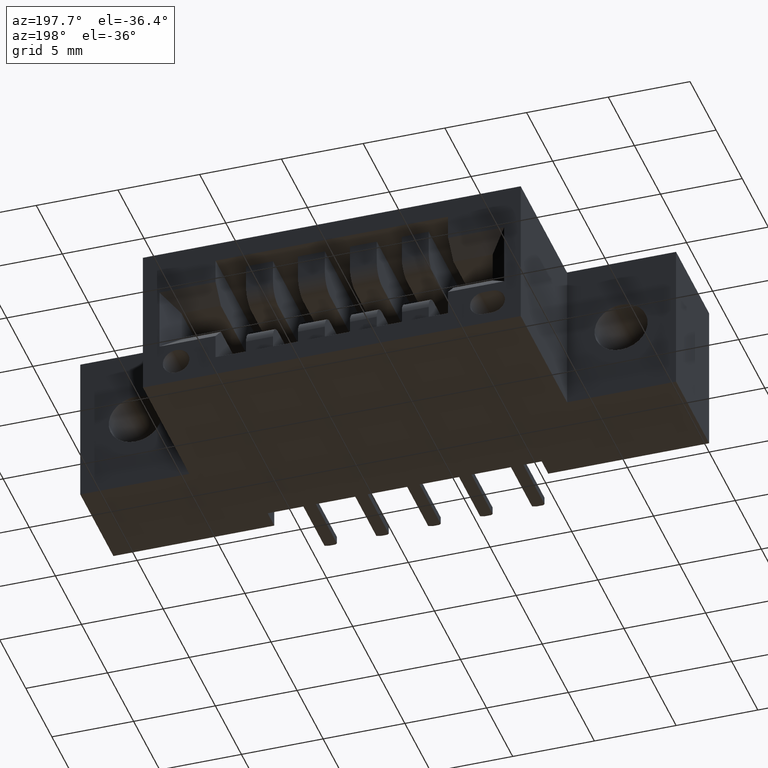
[diagram: clean part render]
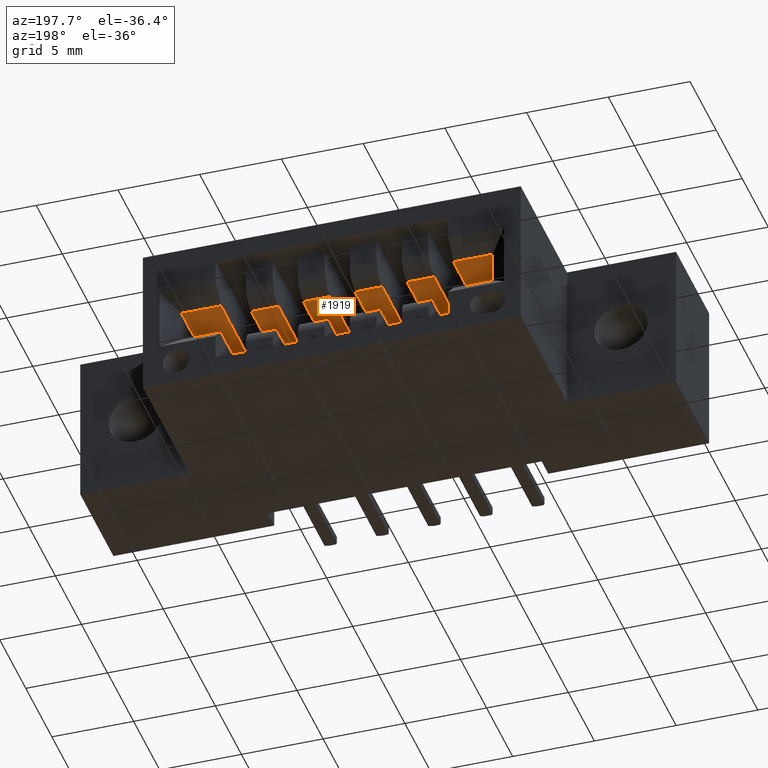
[diagram: same view with one face highlighted and labeled with its STEP entity id]
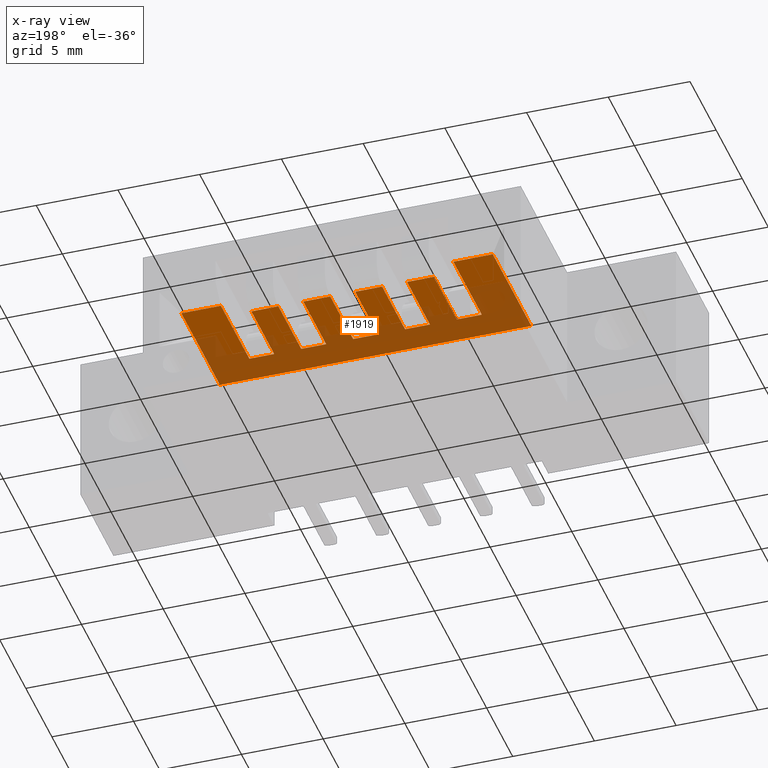
[diagram: x-ray of the same camera — body ghosted, the highlighted face saturated]
A machine part, auxiliary view. The second image highlights one B-rep face of the part: STEP entity #1919.
The next image is the same camera in x-ray: the body ghosted, the highlighted face saturated — about 59% of this face is hidden behind the body in this view.
In plain terms, the highlighted planar face has unit normal (0, 0, 1).
Its self-contained STEP definition (entity closure, byte-faithful):
#73 = CARTESIAN_POINT ( 'NONE',  ( 0.9375000000000000000, 0.5179999999999997939, -0.1480000000000000204 ) ) ;
#82 = CARTESIAN_POINT ( 'NONE',  ( 0.9375000000000000000, 0.5179999999999997939, -0.1480000000000000204 ) ) ;
#120 = LINE ( 'NONE', #4504, #1840 ) ;
#185 = EDGE_CURVE ( 'NONE', #5272, #1942, #6240, .T. ) ;
#240 = LINE ( 'NONE', #1449, #1101 ) ;
#251 = CARTESIAN_POINT ( 'NONE',  ( 0.4974999999999999978, 0.5179999999999997939, -0.1480000000000000759 ) ) ;
#277 = VERTEX_POINT ( 'NONE', #2405 ) ;
#353 = VERTEX_POINT ( 'NONE', #7767 ) ;
#369 = ORIENTED_EDGE ( 'NONE', *, *, #5717, .T. ) ;
#407 = VECTOR ( 'NONE', #7434, 39.37007874015748143 ) ;
#457 = ORIENTED_EDGE ( 'NONE', *, *, #3708, .T. ) ;
#556 = DIRECTION ( 'NONE',  ( -0.0000000000000000000, 0.0000000000000000000, 1.000000000000000000 ) ) ;
#567 = CARTESIAN_POINT ( 'NONE',  ( 1.092500000000000471, 0.5600000000000002753, -0.1480000000000000759 ) ) ;
#630 = PLANE ( 'NONE',  #5503 ) ;
#647 = VERTEX_POINT ( 'NONE', #82 ) ;
#650 = ORIENTED_EDGE ( 'NONE', *, *, #2999, .T. ) ;
#654 = VECTOR ( 'NONE', #8212, 39.37007874015748143 ) ;
#693 = CARTESIAN_POINT ( 'NONE',  ( 0.9374999999999998890, 0.3450000000000001399, -0.1479999999999999927 ) ) ;
#715 = EDGE_CURVE ( 'NONE', #7267, #4969, #5433, .T. ) ;
#736 = VERTEX_POINT ( 'NONE', #7437 ) ;
#781 = DIRECTION ( 'NONE',  ( 1.000000000000000000, -0.0000000000000000000, -0.0000000000000000000 ) ) ;
#791 = CARTESIAN_POINT ( 'NONE',  ( 0.9374999999999998890, 0.2699999999999999067, -0.1480000000000000759 ) ) ;
#846 = EDGE_CURVE ( 'NONE', #277, #2876, #929, .T. ) ;
#868 = VERTEX_POINT ( 'NONE', #6696 ) ;
#885 = CARTESIAN_POINT ( 'NONE',  ( 0.4974999999999999978, 0.2699999999999999067, -0.1480000000000000759 ) ) ;
#917 = VERTEX_POINT ( 'NONE', #5623 ) ;
#929 = LINE ( 'NONE', #1638, #7194 ) ;
#1101 = VECTOR ( 'NONE', #2790, 39.37007874015748143 ) ;
#1249 = VECTOR ( 'NONE', #4449, 39.37007874015748143 ) ;
#1265 = CARTESIAN_POINT ( 'NONE',  ( 0.4375000000000000555, 0.5600000000000002753, -0.1480000000000000759 ) ) ;
#1283 = VERTEX_POINT ( 'NONE', #6253 ) ;
#1337 = DIRECTION ( 'NONE',  ( 1.000000000000000000, -0.0000000000000000000, -0.0000000000000000000 ) ) ;
#1385 = DIRECTION ( 'NONE',  ( -0.0000000000000000000, 1.000000000000000000, -0.0000000000000000000 ) ) ;
#1402 = ORIENTED_EDGE ( 'NONE', *, *, #2123, .T. ) ;
#1449 = CARTESIAN_POINT ( 'NONE',  ( 0.8124999999999998890, 0.2699999999999999067, -0.1480000000000000759 ) ) ;
#1491 = VECTOR ( 'NONE', #5163, 39.37007874015748143 ) ;
#1589 = DIRECTION ( 'NONE',  ( -1.000000000000000000, -0.0000000000000000000, -0.0000000000000000000 ) ) ;
#1638 = CARTESIAN_POINT ( 'NONE',  ( 0.8125000000000000000, 0.5179999999999997939, -0.1480000000000000482 ) ) ;
#1704 = EDGE_CURVE ( 'NONE', #647, #1942, #5759, .T. ) ;
#1715 = VERTEX_POINT ( 'NONE', #567 ) ;
#1724 = DIRECTION ( 'NONE',  ( 0.0000000000000000000, 1.000000000000000000, 0.0000000000000000000 ) ) ;
#1777 = LINE ( 'NONE', #2329, #4919 ) ;
#1791 = CARTESIAN_POINT ( 'NONE',  ( 0.4375000000000000555, 0.3450000000000001399, -0.1480000000000000204 ) ) ;
#1839 = CARTESIAN_POINT ( 'NONE',  ( 0.8725000000000000533, 0.5179999999999997939, -0.1480000000000000204 ) ) ;
#1840 = VECTOR ( 'NONE', #781, 39.37007874015748143 ) ;
#1874 = CARTESIAN_POINT ( 'NONE',  ( 0.8124999999999998890, 0.3450000000000001399, -0.1479999999999999927 ) ) ;
#1919 = ADVANCED_FACE ( 'NONE', ( #5702 ), #630, .F. ) ;
#1938 = LINE ( 'NONE', #693, #3237 ) ;
#1942 = VERTEX_POINT ( 'NONE', #1839 ) ;
#1972 = LINE ( 'NONE', #7012, #2363 ) ;
#2101 = DIRECTION ( 'NONE',  ( 1.000000000000000000, 0.0000000000000000000, 0.0000000000000000000 ) ) ;
#2123 = EDGE_CURVE ( 'NONE', #1283, #4967, #1938, .T. ) ;
#2199 = DIRECTION ( 'NONE',  ( 0.0000000000000000000, 1.000000000000000000, 0.0000000000000000000 ) ) ;
#2329 = CARTESIAN_POINT ( 'NONE',  ( 0.6874999999999998890, 0.2699999999999999067, -0.1480000000000000759 ) ) ;
#2334 = EDGE_CURVE ( 'NONE', #4836, #5897, #6482, .T. ) ;
#2359 = CARTESIAN_POINT ( 'NONE',  ( 0.6224999999999999423, 0.2699999999999999067, -0.1480000000000000759 ) ) ;
#2363 = VECTOR ( 'NONE', #5119, 39.37007874015748143 ) ;
#2405 = CARTESIAN_POINT ( 'NONE',  ( 0.8125000000000000000, 0.5179999999999997939, -0.1480000000000000482 ) ) ;
#2467 = VERTEX_POINT ( 'NONE', #6067 ) ;
#2485 = DIRECTION ( 'NONE',  ( 1.000000000000000000, -0.0000000000000000000, -0.0000000000000000000 ) ) ;
#2487 = CARTESIAN_POINT ( 'NONE',  ( 0.7475000000000000533, 0.5179999999999997939, -0.1480000000000000482 ) ) ;
#2495 = VECTOR ( 'NONE', #4598, 39.37007874015748143 ) ;
#2506 = ORIENTED_EDGE ( 'NONE', *, *, #6363, .T. ) ;
#2533 = CARTESIAN_POINT ( 'NONE',  ( 0.8724999999999999423, 0.3450000000000001399, -0.1479999999999999927 ) ) ;
#2552 = ORIENTED_EDGE ( 'NONE', *, *, #7364, .T. ) ;
#2705 = LINE ( 'NONE', #5252, #3326 ) ;
#2759 = CARTESIAN_POINT ( 'NONE',  ( 0.6224999999999999423, 0.5179999999999997939, -0.1480000000000000482 ) ) ;
#2790 = DIRECTION ( 'NONE',  ( 0.0000000000000000000, 1.000000000000000000, 0.0000000000000000000 ) ) ;
#2838 = VECTOR ( 'NONE', #1337, 39.37007874015748143 ) ;
#2872 = CARTESIAN_POINT ( 'NONE',  ( 0.9974999999999999423, 0.2699999999999999067, -0.1480000000000000759 ) ) ;
#2876 = VERTEX_POINT ( 'NONE', #2487 ) ;
#2999 = EDGE_CURVE ( 'NONE', #868, #7267, #120, .T. ) ;
#3114 = LINE ( 'NONE', #6892, #1249 ) ;
#3231 = EDGE_CURVE ( 'NONE', #868, #4389, #5970, .T. ) ;
#3236 = DIRECTION ( 'NONE',  ( 1.000000000000000000, 0.0000000000000000000, 0.0000000000000000000 ) ) ;
#3237 = VECTOR ( 'NONE', #2485, 39.37007874015748143 ) ;
#3319 = CARTESIAN_POINT ( 'NONE',  ( 0.3425000000000000266, 0.5600000000000002753, -0.1480000000000000759 ) ) ;
#3326 = VECTOR ( 'NONE', #6533, 39.37007874015748143 ) ;
#3329 = VERTEX_POINT ( 'NONE', #7229 ) ;
#3399 = EDGE_CURVE ( 'NONE', #4389, #7336, #5989, .T. ) ;
#3485 = VECTOR ( 'NONE', #4430, 39.37007874015748143 ) ;
#3529 = LINE ( 'NONE', #7953, #6795 ) ;
#3544 = ORIENTED_EDGE ( 'NONE', *, *, #2334, .T. ) ;
#3657 = LINE ( 'NONE', #4863, #5655 ) ;
#3698 = CARTESIAN_POINT ( 'NONE',  ( 0.8724999999999999423, 0.2699999999999999067, -0.1480000000000000759 ) ) ;
#3708 = EDGE_CURVE ( 'NONE', #7443, #3329, #3657, .T. ) ;
#3747 = ORIENTED_EDGE ( 'NONE', *, *, #715, .T. ) ;
#3767 = CARTESIAN_POINT ( 'NONE',  ( 0.6874999999999998890, 0.3450000000000001399, -0.1480000000000000204 ) ) ;
#3770 = VECTOR ( 'NONE', #3946, 39.37007874015748143 ) ;
#3855 = EDGE_CURVE ( 'NONE', #917, #277, #240, .T. ) ;
#3863 = ORIENTED_EDGE ( 'NONE', *, *, #5648, .T. ) ;
#3946 = DIRECTION ( 'NONE',  ( -1.000000000000000000, -0.0000000000000000000, -0.0000000000000000000 ) ) ;
#4389 = VERTEX_POINT ( 'NONE', #7676 ) ;
#4390 = DIRECTION ( 'NONE',  ( 0.0000000000000000000, 1.000000000000000000, 0.0000000000000000000 ) ) ;
#4394 = VECTOR ( 'NONE', #4390, 39.37007874015748143 ) ;
#4402 = VECTOR ( 'NONE', #4998, 39.37007874015748143 ) ;
#4410 = VECTOR ( 'NONE', #1724, 39.37007874015748143 ) ;
#4430 = DIRECTION ( 'NONE',  ( 1.000000000000000000, -0.0000000000000000000, -0.0000000000000000000 ) ) ;
#4438 = CARTESIAN_POINT ( 'NONE',  ( 0.4375000000000000555, 0.2699999999999999067, -0.1480000000000000759 ) ) ;
#4449 = DIRECTION ( 'NONE',  ( 0.0000000000000000000, 1.000000000000000000, 0.0000000000000000000 ) ) ;
#4504 = CARTESIAN_POINT ( 'NONE',  ( 0.5625000000000000000, 0.3450000000000001399, -0.1480000000000000204 ) ) ;
#4532 = LINE ( 'NONE', #7057, #7449 ) ;
#4579 = LINE ( 'NONE', #885, #5748 ) ;
#4595 = ORIENTED_EDGE ( 'NONE', *, *, #185, .T. ) ;
#4598 = DIRECTION ( 'NONE',  ( 0.0000000000000000000, 1.000000000000000000, 0.0000000000000000000 ) ) ;
#4716 = CARTESIAN_POINT ( 'NONE',  ( 0.5625000000000000000, 0.2699999999999999067, -0.1480000000000000759 ) ) ;
#4836 = VERTEX_POINT ( 'NONE', #1791 ) ;
#4863 = CARTESIAN_POINT ( 'NONE',  ( 0.6874999999999998890, 0.3450000000000001399, -0.1480000000000000204 ) ) ;
#4866 = EDGE_CURVE ( 'NONE', #1283, #647, #7081, .T. ) ;
#4919 = VECTOR ( 'NONE', #8032, 39.37007874015748143 ) ;
#4920 = ORIENTED_EDGE ( 'NONE', *, *, #5745, .T. ) ;
#4967 = VERTEX_POINT ( 'NONE', #7327 ) ;
#4969 = VERTEX_POINT ( 'NONE', #2759 ) ;
#4998 = DIRECTION ( 'NONE',  ( 0.0000000000000000000, 1.000000000000000000, 0.0000000000000000000 ) ) ;
#5070 = VECTOR ( 'NONE', #1385, 39.37007874015748143 ) ;
#5119 = DIRECTION ( 'NONE',  ( 1.000000000000000000, 0.0000000000000000000, 0.0000000000000000000 ) ) ;
#5163 = DIRECTION ( 'NONE',  ( -1.000000000000000000, -0.0000000000000000000, -0.0000000000000000000 ) ) ;
#5252 = CARTESIAN_POINT ( 'NONE',  ( 0.3425000000000000266, 0.2699999999999999067, -0.1480000000000000759 ) ) ;
#5272 = VERTEX_POINT ( 'NONE', #2533 ) ;
#5433 = LINE ( 'NONE', #2359, #4410 ) ;
#5503 = AXIS2_PLACEMENT_3D ( 'NONE', #5749, #556, #3236 ) ;
#5555 = ORIENTED_EDGE ( 'NONE', *, *, #7163, .F. ) ;
#5583 = ORIENTED_EDGE ( 'NONE', *, *, #846, .F. ) ;
#5594 = VERTEX_POINT ( 'NONE', #5755 ) ;
#5623 = CARTESIAN_POINT ( 'NONE',  ( 0.8124999999999998890, 0.3450000000000001399, -0.1479999999999999927 ) ) ;
#5648 = EDGE_CURVE ( 'NONE', #7843, #6597, #1972, .T. ) ;
#5655 = VECTOR ( 'NONE', #7973, 39.37007874015748143 ) ;
#5702 = FACE_OUTER_BOUND ( 'NONE', #6801, .T. ) ;
#5712 = LINE ( 'NONE', #3319, #654 ) ;
#5717 = EDGE_CURVE ( 'NONE', #353, #1715, #5712, .T. ) ;
#5745 = EDGE_CURVE ( 'NONE', #736, #7843, #2705, .T. ) ;
#5748 = VECTOR ( 'NONE', #5957, 39.37007874015748143 ) ;
#5749 = CARTESIAN_POINT ( 'NONE',  ( 0.3425000000000000266, 0.2699999999999999067, -0.1480000000000000759 ) ) ;
#5755 = CARTESIAN_POINT ( 'NONE',  ( 0.6875000000000000000, 0.5179999999999997939, -0.1480000000000000482 ) ) ;
#5759 = LINE ( 'NONE', #73, #1491 ) ;
#5772 = EDGE_CURVE ( 'NONE', #7443, #5594, #1777, .T. ) ;
#5897 = VERTEX_POINT ( 'NONE', #6865 ) ;
#5957 = DIRECTION ( 'NONE',  ( 0.0000000000000000000, 1.000000000000000000, 0.0000000000000000000 ) ) ;
#5970 = LINE ( 'NONE', #4716, #7881 ) ;
#5988 = CARTESIAN_POINT ( 'NONE',  ( 0.6224999999999999423, 0.3450000000000001399, -0.1480000000000000204 ) ) ;
#5989 = LINE ( 'NONE', #7798, #3770 ) ;
#6002 = ORIENTED_EDGE ( 'NONE', *, *, #3855, .F. ) ;
#6067 = CARTESIAN_POINT ( 'NONE',  ( 1.092500000000000471, 0.2699999999999999067, -0.1480000000000000759 ) ) ;
#6240 = LINE ( 'NONE', #3698, #4402 ) ;
#6253 = CARTESIAN_POINT ( 'NONE',  ( 0.9374999999999998890, 0.3450000000000001399, -0.1479999999999999927 ) ) ;
#6363 = EDGE_CURVE ( 'NONE', #4967, #353, #6707, .T. ) ;
#6426 = ORIENTED_EDGE ( 'NONE', *, *, #7321, .F. ) ;
#6451 = LINE ( 'NONE', #7043, #5070 ) ;
#6482 = LINE ( 'NONE', #6523, #2838 ) ;
#6520 = EDGE_CURVE ( 'NONE', #3329, #2876, #3114, .T. ) ;
#6523 = CARTESIAN_POINT ( 'NONE',  ( 0.4375000000000000555, 0.3450000000000001399, -0.1480000000000000204 ) ) ;
#6533 = DIRECTION ( 'NONE',  ( -0.0000000000000000000, 1.000000000000000000, -0.0000000000000000000 ) ) ;
#6556 = ORIENTED_EDGE ( 'NONE', *, *, #6769, .F. ) ;
#6597 = VERTEX_POINT ( 'NONE', #1265 ) ;
#6636 = ORIENTED_EDGE ( 'NONE', *, *, #3399, .F. ) ;
#6696 = CARTESIAN_POINT ( 'NONE',  ( 0.5625000000000000000, 0.3450000000000001399, -0.1480000000000000204 ) ) ;
#6707 = LINE ( 'NONE', #2872, #407 ) ;
#6715 = EDGE_CURVE ( 'NONE', #5897, #7336, #4579, .T. ) ;
#6769 = EDGE_CURVE ( 'NONE', #736, #2467, #4532, .T. ) ;
#6795 = VECTOR ( 'NONE', #7341, 39.37007874015748143 ) ;
#6801 = EDGE_LOOP ( 'NONE', ( #4920, #3863, #8061, #3544, #7544, #6636, #8051, #650, #3747, #6426, #7939, #457, #7298, #5583, #6002, #2552, #4595, #7358, #8184, #1402, #2506, #369, #5555, #6556 ) ) ;
#6865 = CARTESIAN_POINT ( 'NONE',  ( 0.4974999999999999978, 0.3450000000000001399, -0.1480000000000000204 ) ) ;
#6885 = LINE ( 'NONE', #4438, #4394 ) ;
#6892 = CARTESIAN_POINT ( 'NONE',  ( 0.7474999999999998312, 0.2699999999999999067, -0.1480000000000000759 ) ) ;
#7002 = EDGE_CURVE ( 'NONE', #4836, #6597, #6885, .T. ) ;
#7012 = CARTESIAN_POINT ( 'NONE',  ( 0.3425000000000000266, 0.5600000000000002753, -0.1480000000000000759 ) ) ;
#7043 = CARTESIAN_POINT ( 'NONE',  ( 1.092500000000000471, 0.2699999999999999067, -0.1480000000000000759 ) ) ;
#7057 = CARTESIAN_POINT ( 'NONE',  ( 0.3425000000000000266, 0.2699999999999999067, -0.1480000000000000759 ) ) ;
#7081 = LINE ( 'NONE', #791, #2495 ) ;
#7163 = EDGE_CURVE ( 'NONE', #2467, #1715, #6451, .T. ) ;
#7194 = VECTOR ( 'NONE', #1589, 39.37007874015748143 ) ;
#7229 = CARTESIAN_POINT ( 'NONE',  ( 0.7474999999999998312, 0.3450000000000001399, -0.1480000000000000204 ) ) ;
#7267 = VERTEX_POINT ( 'NONE', #5988 ) ;
#7298 = ORIENTED_EDGE ( 'NONE', *, *, #6520, .T. ) ;
#7321 = EDGE_CURVE ( 'NONE', #5594, #4969, #3529, .T. ) ;
#7327 = CARTESIAN_POINT ( 'NONE',  ( 0.9974999999999999423, 0.3450000000000001399, -0.1479999999999999927 ) ) ;
#7336 = VERTEX_POINT ( 'NONE', #251 ) ;
#7341 = DIRECTION ( 'NONE',  ( -1.000000000000000000, -0.0000000000000000000, -0.0000000000000000000 ) ) ;
#7358 = ORIENTED_EDGE ( 'NONE', *, *, #1704, .F. ) ;
#7364 = EDGE_CURVE ( 'NONE', #917, #5272, #8158, .T. ) ;
#7434 = DIRECTION ( 'NONE',  ( 0.0000000000000000000, 1.000000000000000000, 0.0000000000000000000 ) ) ;
#7437 = CARTESIAN_POINT ( 'NONE',  ( 0.3425000000000000266, 0.2699999999999999067, -0.1480000000000000759 ) ) ;
#7443 = VERTEX_POINT ( 'NONE', #3767 ) ;
#7449 = VECTOR ( 'NONE', #2101, 39.37007874015748143 ) ;
#7519 = CARTESIAN_POINT ( 'NONE',  ( 0.3425000000000000266, 0.5600000000000002753, -0.1480000000000000759 ) ) ;
#7544 = ORIENTED_EDGE ( 'NONE', *, *, #6715, .T. ) ;
#7676 = CARTESIAN_POINT ( 'NONE',  ( 0.5625000000000000000, 0.5180000000000000160, -0.1480000000000000759 ) ) ;
#7767 = CARTESIAN_POINT ( 'NONE',  ( 0.9974999999999999423, 0.5600000000000002753, -0.1480000000000000759 ) ) ;
#7798 = CARTESIAN_POINT ( 'NONE',  ( 0.5625000000000000000, 0.5179999999999997939, -0.1480000000000000759 ) ) ;
#7843 = VERTEX_POINT ( 'NONE', #7519 ) ;
#7881 = VECTOR ( 'NONE', #2199, 39.37007874015748143 ) ;
#7939 = ORIENTED_EDGE ( 'NONE', *, *, #5772, .F. ) ;
#7953 = CARTESIAN_POINT ( 'NONE',  ( 0.6875000000000000000, 0.5179999999999997939, -0.1480000000000000482 ) ) ;
#7973 = DIRECTION ( 'NONE',  ( 1.000000000000000000, -0.0000000000000000000, -0.0000000000000000000 ) ) ;
#8032 = DIRECTION ( 'NONE',  ( 0.0000000000000000000, 1.000000000000000000, 0.0000000000000000000 ) ) ;
#8051 = ORIENTED_EDGE ( 'NONE', *, *, #3231, .F. ) ;
#8061 = ORIENTED_EDGE ( 'NONE', *, *, #7002, .F. ) ;
#8158 = LINE ( 'NONE', #1874, #3485 ) ;
#8184 = ORIENTED_EDGE ( 'NONE', *, *, #4866, .F. ) ;
#8212 = DIRECTION ( 'NONE',  ( 1.000000000000000000, 0.0000000000000000000, 0.0000000000000000000 ) ) ;